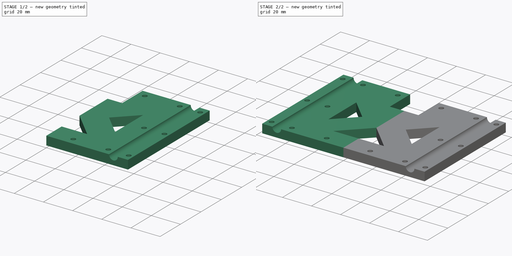
[diagram: build sequence overview — one tinted view per stage of 2, left to right]
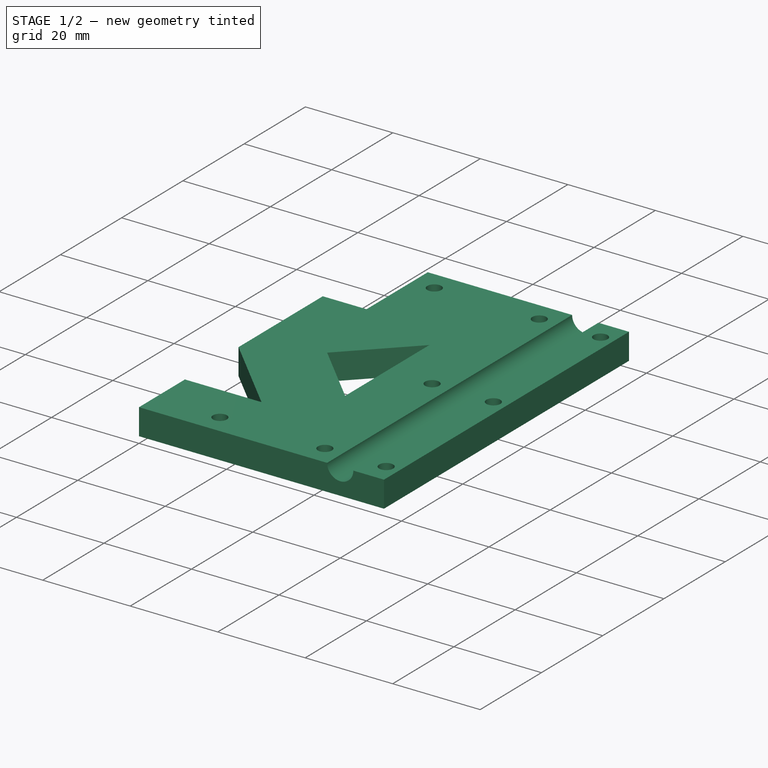
[diagram: stage 1 of 2 — iso view after this stage's code; geometry added in this stage tinted green]
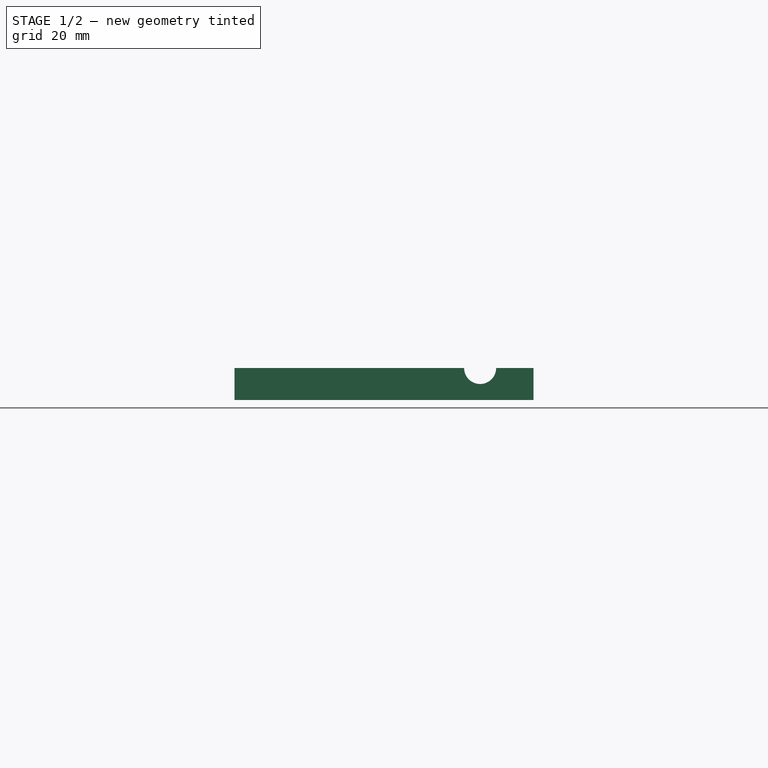
[diagram: stage 1 of 2 — front view after this stage's code; geometry added in this stage tinted green]
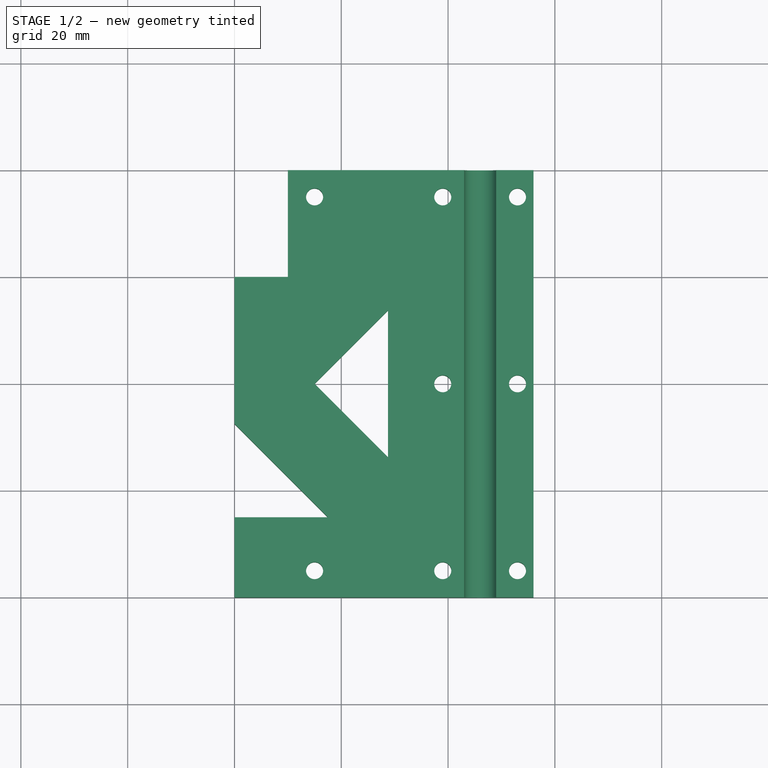
[diagram: stage 1 of 2 — top view after this stage's code; geometry added in this stage tinted green]
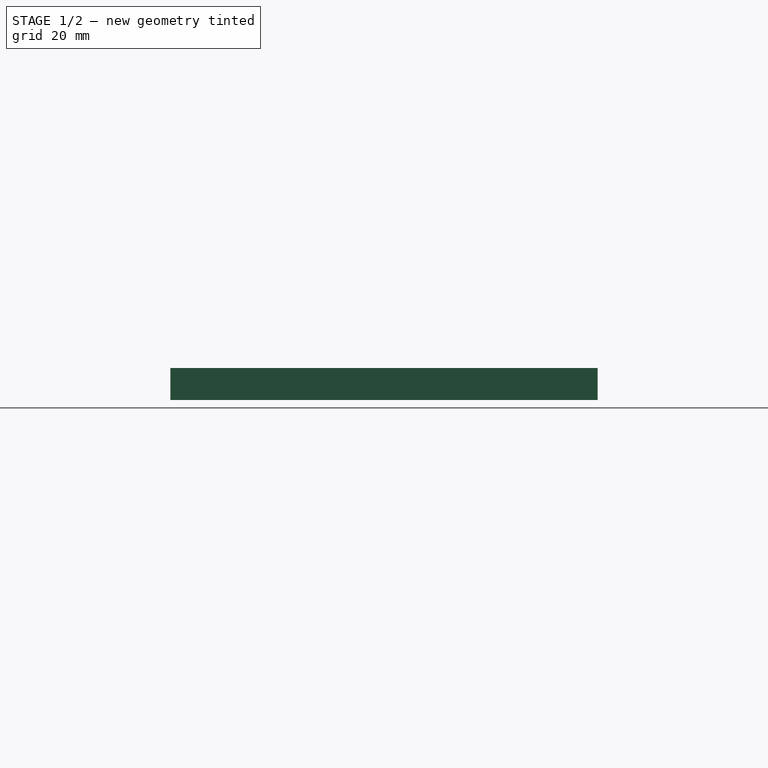
[diagram: stage 1 of 2 — right view after this stage's code; geometry added in this stage tinted green]
FCSTD DOCUMENT  (FreeCAD 0.18R14090 (Git))
Label: BedRodsAlignmentToolHalf_Alt
License: All rights reserved
LicenseURL: http://en.wikipedia.org/wiki/All_rights_reserved
objects: Sketcher::SketchObject×2, PartDesign::Pad×1, PartDesign::Pocket×1, PartDesign::Body×1, Part::Mirroring×1, Part::MultiFuse×1, App::Part×1
note: 9 computed .brp shape members not serialized (recipe doc carries the construction recipe); baked Part::Feature solids carry a one-line shape summary decoded from their .brp

FEATURE [Sketcher::SketchObject] Sketch  label="ToolBaseSketch"
  MapMode = 5
  Support = -> [XY_Plane001]
  sketch-geometry (37):
    g0: LineSegment StartX=46 StartY=-40 StartZ=0 EndX=0 EndY=-40 EndZ=0
    g1: LineSegment StartX=46 StartY=40 StartZ=0 EndX=56 EndY=40 EndZ=0
    g2: LineSegment StartX=56 StartY=40 StartZ=0 EndX=56 EndY=-40 EndZ=0
    g3: LineSegment StartX=56 StartY=-40 StartZ=0 EndX=46 EndY=-40 EndZ=0
    g4: LineSegment [constr] StartX=0 StartY=40 StartZ=0 EndX=0 EndY=25 EndZ=0
    g5: LineSegment StartX=0 StartY=-40 StartZ=0 EndX=0 EndY=-25 EndZ=0
    g6: LineSegment StartX=0 StartY=-25 StartZ=0 EndX=17.5 EndY=-25 EndZ=0
    g7: LineSegment [constr] StartX=17.5 StartY=25 StartZ=0 EndX=0 EndY=25 EndZ=0
    g8: LineSegment StartX=0 StartY=7.5 StartZ=0 EndX=0 EndY=-7.5 EndZ=0
    g9: LineSegment [constr] StartX=0 StartY=7.5 StartZ=0 EndX=17.5 EndY=25 EndZ=0
    g10: LineSegment StartX=0 StartY=-7.5 StartZ=0 EndX=17.5 EndY=-25 EndZ=0
    g11: LineSegment StartX=15 StartY=0 StartZ=0 EndX=28.75 EndY=13.75 EndZ=0
    g12: LineSegment StartX=28.75 StartY=13.75 StartZ=0 EndX=28.75 EndY=-13.75 EndZ=0
    g13: LineSegment StartX=28.75 StartY=-13.75 StartZ=0 EndX=15 EndY=0 EndZ=0
    g14: LineSegment [constr] StartX=17.5 StartY=25 StartZ=0 EndX=28.75 EndY=13.75 EndZ=0
    g15: Circle CenterX=53 CenterY=0 CenterZ=0 NormalX=0 NormalY=0 NormalZ=1 AngleXU=0 Radius=1.6
    g16: Circle CenterX=53 CenterY=35 CenterZ=0 NormalX=0 NormalY=0 NormalZ=1 AngleXU=0 Radius=1.6
    g17: Circle CenterX=53 CenterY=-35 CenterZ=0 NormalX=0 NormalY=0 NormalZ=1 AngleXU=0 Radius=1.6
    g18: LineSegment [constr] StartX=53 StartY=0 StartZ=0 EndX=53 EndY=35 EndZ=0
    g19: LineSegment [constr] StartX=53 StartY=0 StartZ=0 EndX=53 EndY=-35 EndZ=0
    g20: Circle CenterX=39 CenterY=35 CenterZ=0 NormalX=0 NormalY=0 NormalZ=1 AngleXU=0 Radius=1.6
    g21: Circle CenterX=39 CenterY=0 CenterZ=0 NormalX=0 NormalY=0 NormalZ=1 AngleXU=0 Radius=1.6
    g22: Circle CenterX=39 CenterY=-35 CenterZ=0 NormalX=0 NormalY=0 NormalZ=1 AngleXU=0 Radius=1.6
    g23: Circle CenterX=15 CenterY=35 CenterZ=0 NormalX=0 NormalY=0 NormalZ=1 AngleXU=0 Radius=1.6
    g24: Circle CenterX=15 CenterY=-35 CenterZ=0 NormalX=0 NormalY=0 NormalZ=1 AngleXU=0 Radius=1.6
    g25: LineSegment [constr] StartX=53 StartY=-35 StartZ=0 EndX=39 EndY=-35 EndZ=0
    g26: LineSegment [constr] StartX=39 StartY=-35 StartZ=0 EndX=15 EndY=-35 EndZ=0
    g27: LineSegment [constr] StartX=53 StartY=35 StartZ=0 EndX=39 EndY=35 EndZ=0
    g28: LineSegment [constr] StartX=39 StartY=35 StartZ=0 EndX=15 EndY=35 EndZ=0
    g29: LineSegment [constr] StartX=39 StartY=0 StartZ=0 EndX=39 EndY=-35 EndZ=0
    g30: LineSegment [constr] StartX=39 StartY=0 StartZ=0 EndX=39 EndY=35 EndZ=0
    g31: LineSegment [constr] StartX=15 StartY=35 StartZ=0 EndX=15 EndY=-35 EndZ=0
    g32: LineSegment StartX=46 StartY=40 StartZ=0 EndX=10 EndY=40 EndZ=0
    g33: LineSegment StartX=10 StartY=40 StartZ=0 EndX=10 EndY=20 EndZ=0
    g34: LineSegment StartX=10 StartY=20 StartZ=0 EndX=0 EndY=20 EndZ=0
    g35: LineSegment [constr] StartX=10 StartY=40 StartZ=0 EndX=0 EndY=40 EndZ=0
    g36: LineSegment StartX=0 StartY=20 StartZ=0 EndX=0 EndY=7.5 EndZ=0
  constraints (95):
    c: Horizontal(g0)
    c: Symmetric(g0,g4,g-1)
    c: PointOnObject(g4,g-2)
    c: Horizontal(g1)
    c: Coincident(g2,g1)
    c: Vertical(g2)
    c: Coincident(g3,g2)
    c: Horizontal(g3)
    c: Distance(g1) = 10
    c: Distance(g2) = 80
    c: Coincident(g3,g0)
    c: Equal(g3,g1)
    c: Coincident(g5,g0)
    c: PointOnObject(g5,g-2)
    c: Coincident(g6,g5)
    c: Horizontal(g7)
    c: Horizontal(g6)
    c: Symmetric(g6,g7,g-1)
    c: PointOnObject(g8,g-2)
    c: Symmetric(g8,g8,g-1)
    c: Coincident(g9,g8)
    c: Coincident(g9,g7)
    c: Coincident(g10,g8)
    c: Coincident(g10,g6)
    c: Coincident(g7,g4)
    c: Distance(g8) = 15
    c: Distance(g4) = 15
    c: Angle(g7,g9) = 0.785398
    c: PointOnObject(g11,g-1)
    c: Coincident(g12,g11)
    c: Coincident(g13,g12)
    c: Coincident(g13,g11)
    c: Symmetric(g11,g12,g-1)
    c: Coincident(g14,g7)
    c: Coincident(g14,g11)
    c: Angle(g13,g11) = 1.5708
    c: Distance(g-1,g11) = 15
    c: Angle(g9,g14) = 1.5708
    c: PointOnObject(g15,g-1)
    c: Coincident(g18,g15)
    c: Coincident(g18,g16)
    c: Vertical(g18)
    c: Coincident(g19,g15)
    c: Coincident(g19,g17)
    c: Distance(g16,g1) = 5
    c: PointOnObject(g21,g-1)
    c: Coincident(g25,g17)
    c: Coincident(g25,g22)
    c: Coincident(g26,g22)
    c: Coincident(g26,g24)
    c: Coincident(g27,g16)
    c: Coincident(g27,g20)
    c: Coincident(g28,g23)
    c: Coincident(g29,g21)
    c: Coincident(g29,g22)
    c: Vertical(g29)
    c: Coincident(g30,g21)
    c: Coincident(g30,g20)
    c: Vertical(g30)
    c: Horizontal(g28)
    c: Horizontal(g26)
    c: Horizontal(g25)
    c: Horizontal(g27)
    c: Coincident(g28,g20)
    c: Equal(g16,g20)
    c: Equal(g20,g23)
    c: Equal(g23,g21)
    c: Equal(g21,g15)
    c: Equal(g15,g17)
    c: Equal(g17,g22)
    c: Equal(g22,g24)
    c: Radius(g23) = 1.6
    c: Coincident(g31,g23)
    c: Coincident(g31,g24)
    c: Vertical(g31)
    c: Distance(g23,g4) = 15
    c: Symmetric(g17,g16,g-1)
    c: Distance(g21,g15) = 14
    c: Distance(g15,g2) = 3
    c: Coincident(g32,g1)
    c: Horizontal(g32)
    c: Distance(g1,g4) = 46
    c: Coincident(g33,g32)
    c: Vertical(g33)
    c: Coincident(g34,g33)
    c: Coincident(g35,g32)
    c: Coincident(g35,g4)
    c: Horizontal(g35)
    c: Coincident(g36,g8)
    c: Distance(g23,g33) = 5
    c: PointOnObject(g4,g-2)
    c: Coincident(g36,g34)
    c: PointOnObject(g34,g-2)
    c: Horizontal(g34)
    c: Distance(g34,g4) = 20
FEATURE [PartDesign::Pad] Pad  label="ToolBasePad"
  Length = 6
  Length2 = 100
  Profile = -> Sketch
  Reversed = true
  Type = 0
FEATURE [Sketcher::SketchObject] Sketch001  label="RodNotchSketch"
  ExternalGeometry = -> [Sketch]
  MapMode = 5
  Placement = pos=(0,0,0) rot=(1,0,0;1.5708rad)
  Support = -> [XZ_Plane001]
  sketch-geometry (1):
    g0: Circle CenterX=46 CenterY=0 CenterZ=0 NormalX=0 NormalY=0 NormalZ=1 AngleXU=0 Radius=3
  constraints (2):
    c: Radius(g0) = 3
    c: Coincident(g0,g-3)
FEATURE [PartDesign::Pocket] Pocket  label="RodNotchPocket"
  BaseFeature = -> Pad
  Length = 5
  Length2 = 100
  Midplane = true
  Profile = -> Sketch001
  Type = 1
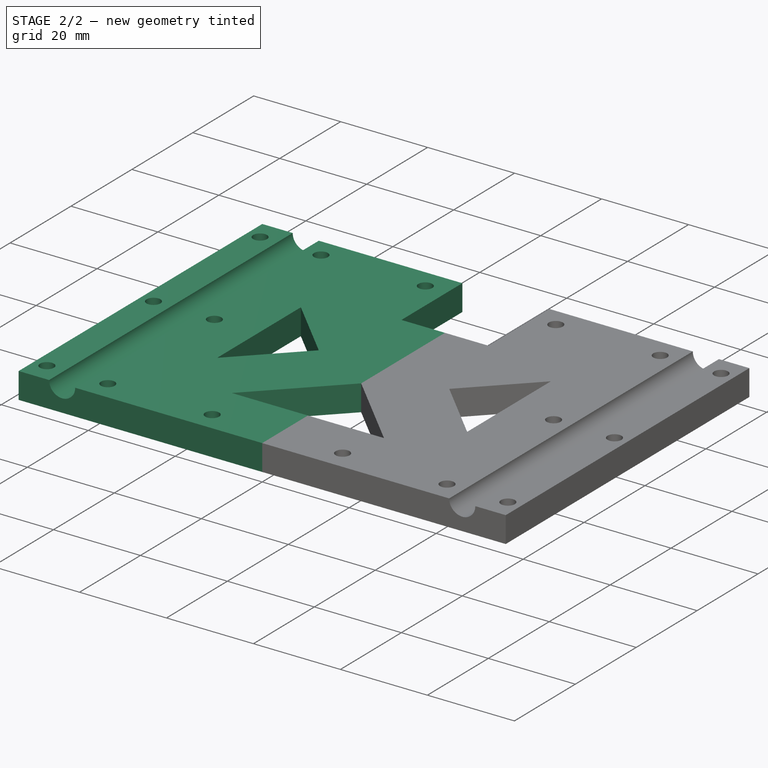
[diagram: stage 2 of 2 — iso view after this stage's code; geometry added in this stage tinted green]
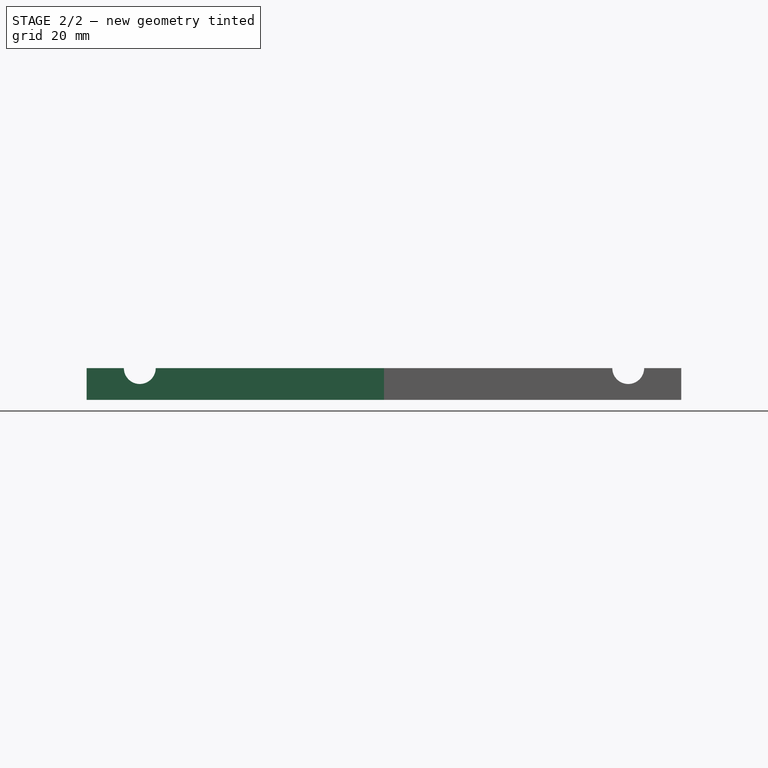
[diagram: stage 2 of 2 — front view after this stage's code; geometry added in this stage tinted green]
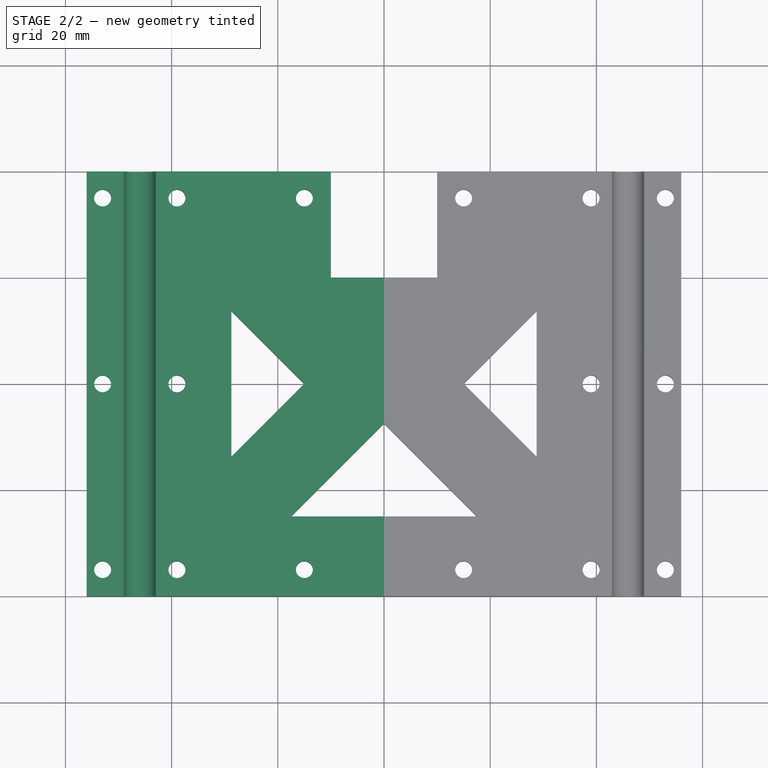
[diagram: stage 2 of 2 — top view after this stage's code; geometry added in this stage tinted green]
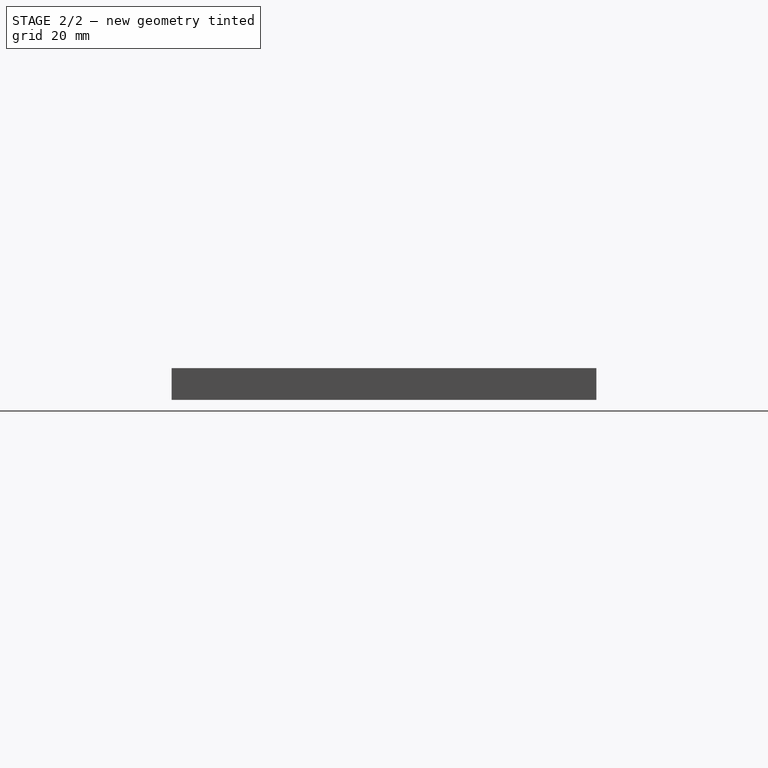
[diagram: stage 2 of 2 — right view after this stage's code; geometry added in this stage tinted green]
FEATURE [PartDesign::Body] Body  label="ToolBody"
  Group = -> [Sketch,Pad,Sketch001,Pocket]
  Origin = -> Origin001
  Tip = -> Pocket
FEATURE [Part::Mirroring] Part__Mirroring  label="ToolBody_Mirror"
  Base = (0,0,0)
  Normal = (1,0,0)
  Source = -> Body
FEATURE [Part::MultiFuse] Fusion  label="ToolFusion"
  Shapes = -> [Part__Mirroring,Body]
FEATURE [App::Part] Part  label="ToolPart"
  Group = -> [Body,Part__Mirroring,Fusion]
  License = CC BY 3.0
  LicenseURL = http://creativecommons.org/licenses/by/3.0/
  Origin = -> Origin
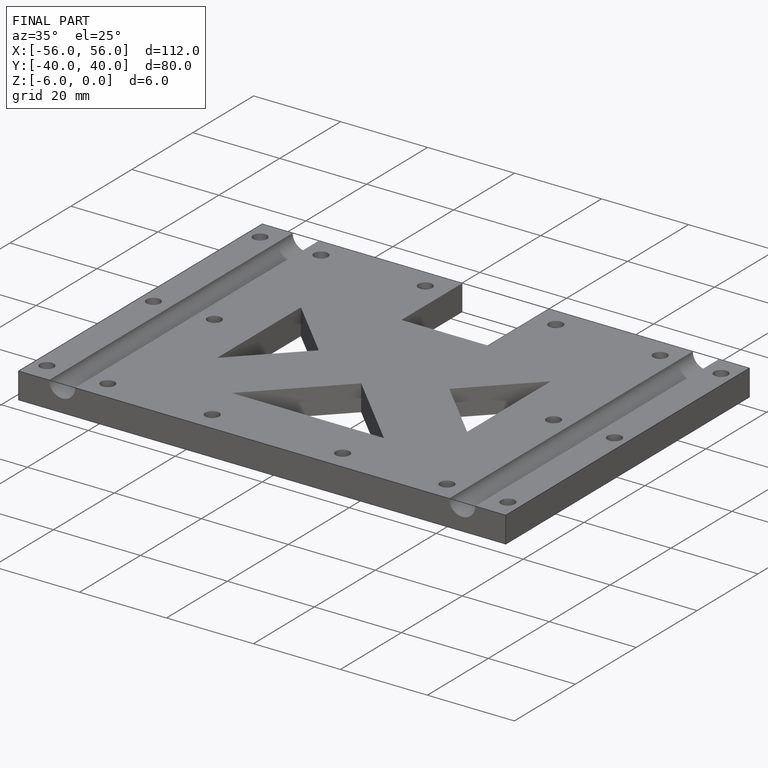
[diagram: finished part — iso view with bounding-box wireframe]
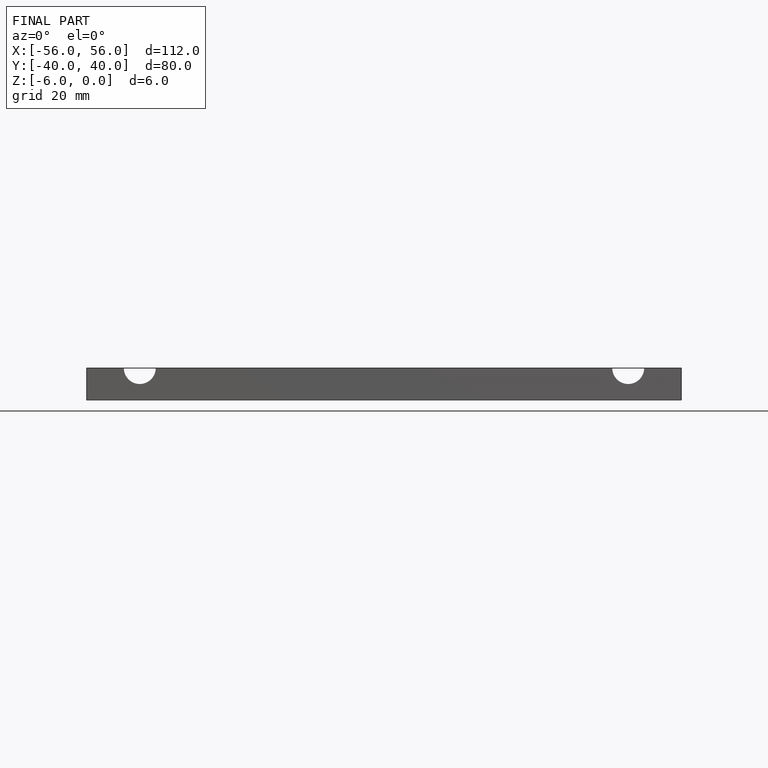
[diagram: finished part — front view with bounding-box wireframe]
